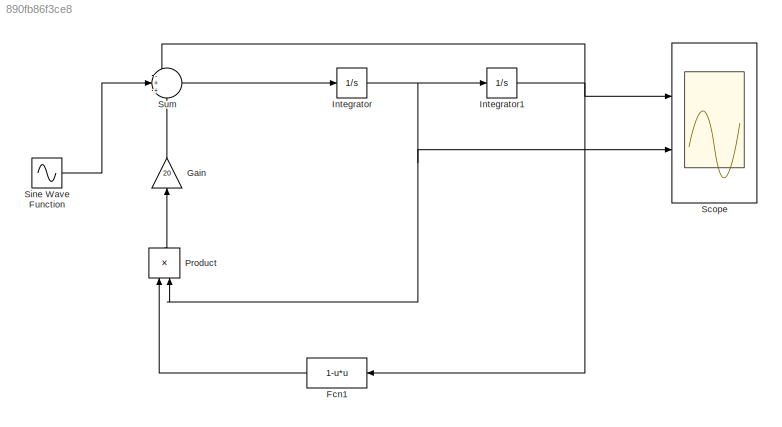
MODEL slx_890fb86f3ce8
KIND model
CONFIG AbsTol = auto
CONFIG EnableMultiTasking = off
CONFIG FixedStep = auto
CONFIG MaxStep = auto
CONFIG MinStep = auto
CONFIG RelTol = 1e-3
CONFIG SampleTimeConstraint = Unconstrained
CONFIG Solver = VariableStepAuto
CONFIG SolverName = VariableStepAuto
CONFIG StartTime = 0.0
CONFIG StopTime = 10.0
BLOCK [Fcn] Fcn1
  Expr = 1-u*u
BLOCK [Gain] Gain
  Gain = 20
  NameLocation = right
BLOCK [Integrator] Integrator
  Ports = [1, 1]
BLOCK [Integrator] Integrator1
  InitialCondition = 2
  Ports = [1, 1]
BLOCK [Product] Product
  NameLocation = right
  Ports = [2, 1]
BLOCK [Scope] Scope
  Floating = off
  NumInputPorts = 2
  Ports = [2]
  ScopeSpecificationString = Simulink.scopes.TimeScopeBlockCfg('CurrentConfiguration', extmgr.ConfigurationSet(extmgr.Configuration('Core','General UI',true),extmgr.Configuration('Core','Source UI',true),extmgr.Configuration('Sources','WiredSimulink',true),extmgr.Configuration('Visuals','Time Domain',true,'SerializedDisplays',{struct('MinYLimReal','-0.28488','MaxYLimReal','2.25388','YLabelReal','','MinYLimMag','0.00000','MaxY...<+1371ch>
BLOCK [Sin] Sine Wave Function
  Amplitude = 0.5
  Phase = pi/2
  Ports = [1, 1]
  SampleTime = 0
  TimeSource = Use external signal
BLOCK [Sum] Sum
  Inputs = -++
  NameLocation = top
  Ports = [3, 1]
LINE Fcn1:1 -> Product:1
LINE Gain:1 -> Sum:3
NET Integrator1:1 -> Fcn1:1, Scope:1, Sum:1
NET Integrator:1 -> Integrator1:1, Product:2, Scope:2
LINE Product:1 -> Gain:1
LINE Sine Wave Function:1 -> Sum:2
LINE Sum:1 -> Integrator:1
note: NET lines group one-source signal fan-out (src -> all destinations, sorted); 1:1 wires keep LINE
